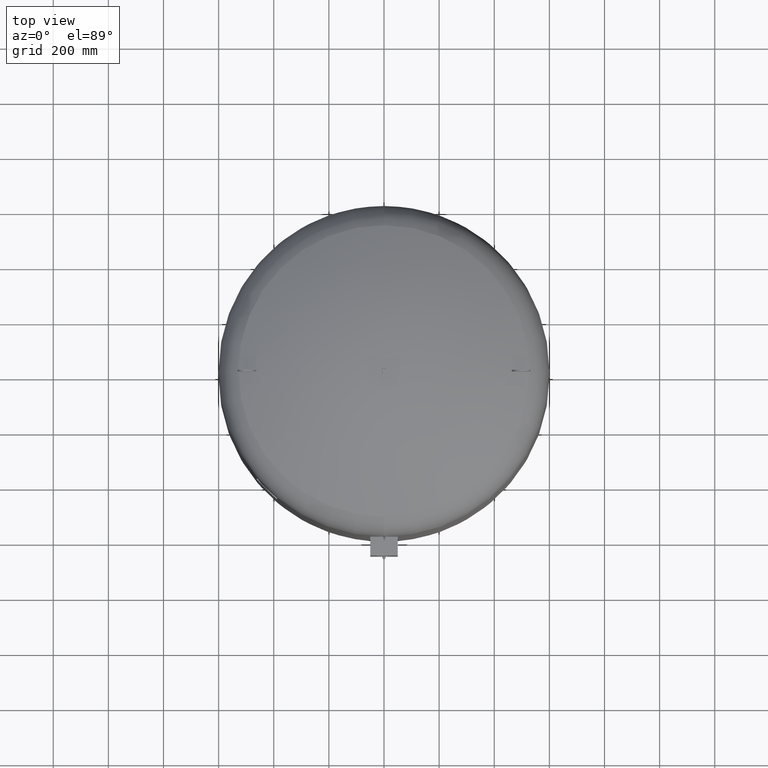
[diagram: clean part render]
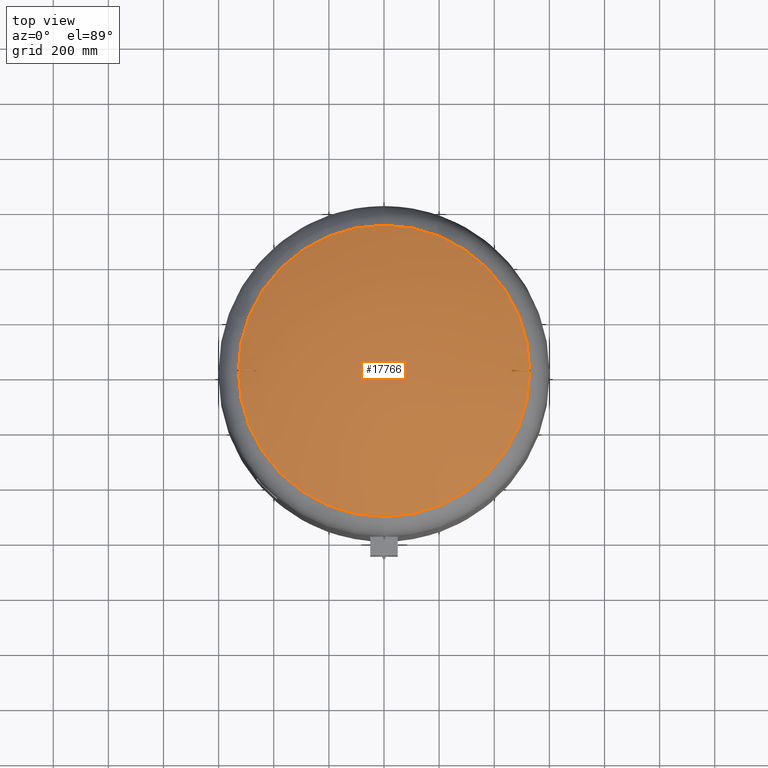
[diagram: same view with one face highlighted and labeled with its STEP entity id]
A machine part, top view. The second image highlights one B-rep face of the part: STEP entity #17766.
In plain terms, the highlighted spherical surface has radius 1207 mm.
Its self-contained STEP definition (entity closure, byte-faithful):
#17198=CARTESIAN_POINT('',(3.894773E-014,-528.621296296296240,1847.084570483805000));
#17199=VERTEX_POINT('',#17198);
#17215=CARTESIAN_POINT('',(1.036830E-013,528.621296296296240,1847.084570483805000));
#17216=VERTEX_POINT('',#17215);
#17224=CARTESIAN_POINT('',(528.621296296296240,-2.239550E-014,1847.084570483805000));
#17225=VERTEX_POINT('',#17224);
#17226=CARTESIAN_POINT('',(3.410787E-015,-2.239550E-014,1847.084570483805000));
#17227=DIRECTION('',(0.0,0.0,-1.0));
#17228=DIRECTION('',(1.0,0.0,0.0));
#17229=AXIS2_PLACEMENT_3D('',#17226,#17227,#17228);
#17230=CIRCLE('',#17229,528.621296296296240);
#17231=EDGE_CURVE('',#17216,#17225,#17230,.T.);
#17233=CARTESIAN_POINT('',(3.410787E-015,-2.239550E-014,1847.084570483805000));
#17234=DIRECTION('',(0.0,0.0,-1.0));
#17235=DIRECTION('',(1.0,0.0,0.0));
#17236=AXIS2_PLACEMENT_3D('',#17233,#17234,#17235);
#17237=CIRCLE('',#17236,528.621296296296240);
#17238=EDGE_CURVE('',#17225,#17199,#17237,.T.);
#17353=CARTESIAN_POINT('',(-463.451600218966230,-3.000000000000292,1876.474142479079300));
#17354=VERTEX_POINT('',#17353);
#17355=CARTESIAN_POINT('',(-521.618748390259610,-2.999999999999862,1850.464000933324300));
#17356=VERTEX_POINT('',#17355);
#17357=CARTESIAN_POINT('',(1.015543E-013,-3.000000000004973,762.0));
#17358=DIRECTION('',(0.0,-1.0,0.0));
#17359=DIRECTION('',(0.0,0.0,1.0));
#17360=AXIS2_PLACEMENT_3D('',#17357,#17358,#17359);
#17361=CIRCLE('',#17360,1206.996271742378000);
#17362=EDGE_CURVE('',#17354,#17356,#17361,.T.);
#17405=CARTESIAN_POINT('',(-463.451600218966290,2.999999999999727,1876.474142479079500));
#17406=VERTEX_POINT('',#17405);
#17407=CARTESIAN_POINT('',(-143.673995061822890,7.801844E-013,722.196972395375950));
#17408=DIRECTION('',(0.963701753162816,-6.720348E-015,0.266981143436978));
#17409=DIRECTION('',(-0.266981143436977,0.0,0.963701753162815));
#17410=AXIS2_PLACEMENT_3D('',#17407,#17408,#17409);
#17411=CIRCLE('',#17410,1197.757280143385700);
#17412=EDGE_CURVE('',#17406,#17354,#17411,.T.);
#17455=CARTESIAN_POINT('',(-521.618748390259730,3.000000000000095,1850.464000933324100));
#17456=VERTEX_POINT('',#17455);
#17457=CARTESIAN_POINT('',(-204.387205511080400,1.203566E-012,705.377160358846370));
#17458=DIRECTION('',(-0.963701753162815,6.720348E-015,-0.266981143436977));
#17459=DIRECTION('',(0.266981143436977,0.0,-0.963701753162815));
#17460=AXIS2_PLACEMENT_3D('',#17457,#17458,#17459);
#17461=CIRCLE('',#17460,1188.220823018324600);
#17462=EDGE_CURVE('',#17356,#17456,#17461,.T.);
#17487=CARTESIAN_POINT('',(1.458865E-013,2.999999999995042,762.0));
#17488=DIRECTION('',(0.0,1.0,0.0));
#17489=DIRECTION('',(0.0,0.0,-1.0));
#17490=AXIS2_PLACEMENT_3D('',#17487,#17488,#17489);
#17491=CIRCLE('',#17490,1206.996271742378000);
#17492=EDGE_CURVE('',#17456,#17406,#17491,.T.);
#17527=CARTESIAN_POINT('',(463.451600218966350,2.999999999999727,1876.474142479079800));
#17528=VERTEX_POINT('',#17527);
#17529=CARTESIAN_POINT('',(521.618748390259730,3.000000000000095,1850.464000933324300));
#17530=VERTEX_POINT('',#17529);
#17531=CARTESIAN_POINT('',(1.015543E-013,2.999999999995042,762.0));
#17532=DIRECTION('',(0.0,1.0,0.0));
#17533=DIRECTION('',(0.0,0.0,-1.0));
#17534=AXIS2_PLACEMENT_3D('',#17531,#17532,#17533);
#17535=CIRCLE('',#17534,1206.996271742378000);
#17536=EDGE_CURVE('',#17528,#17530,#17535,.T.);
#17579=CARTESIAN_POINT('',(463.451600218966230,-3.000000000000292,1876.474142479079300));
#17580=VERTEX_POINT('',#17579);
#17581=CARTESIAN_POINT('',(143.673995061822890,7.801844E-013,722.196972395375950));
#17582=DIRECTION('',(-0.963701753162816,-6.720348E-015,0.266981143436978));
#17583=DIRECTION('',(-0.266981143436977,0.0,-0.963701753162815));
#17584=AXIS2_PLACEMENT_3D('',#17581,#17582,#17583);
#17585=CIRCLE('',#17584,1197.757280143385700);
#17586=EDGE_CURVE('',#17580,#17528,#17585,.T.);
#17650=CARTESIAN_POINT('',(521.618748390259610,-2.999999999999862,1850.464000933324300));
#17651=VERTEX_POINT('',#17650);
#17652=CARTESIAN_POINT('',(204.387205511080450,1.203566E-012,705.377160358846370));
#17653=DIRECTION('',(0.963701753162815,6.720348E-015,-0.266981143436977));
#17654=DIRECTION('',(0.266981143436977,0.0,0.963701753162815));
#17655=AXIS2_PLACEMENT_3D('',#17652,#17653,#17654);
#17656=CIRCLE('',#17655,1188.220823018324600);
#17657=EDGE_CURVE('',#17530,#17651,#17656,.T.);
#17721=CARTESIAN_POINT('',(1.458865E-013,-3.000000000004973,762.0));
#17722=DIRECTION('',(0.0,-1.0,0.0));
#17723=DIRECTION('',(0.0,0.0,1.0));
#17724=AXIS2_PLACEMENT_3D('',#17721,#17722,#17723);
#17725=CIRCLE('',#17724,1206.996271742378000);
#17726=EDGE_CURVE('',#17651,#17580,#17725,.T.);
#17738=CARTESIAN_POINT('',(1.237204E-013,-2.217223E-013,762.0));
#17739=DIRECTION('',(0.0,-1.0,0.0));
#17740=DIRECTION('',(-1.0,0.0,0.0));
#17741=AXIS2_PLACEMENT_3D('',#17738,#17739,#17740);
#17742=SPHERICAL_SURFACE('',#17741,1207.000000000000200);
#17743=ORIENTED_EDGE('',*,*,#17412,.T.);
#17744=ORIENTED_EDGE('',*,*,#17362,.T.);
#17745=ORIENTED_EDGE('',*,*,#17462,.T.);
#17746=ORIENTED_EDGE('',*,*,#17492,.T.);
#17747=EDGE_LOOP('',(#17743,#17744,#17745,#17746));
#17748=FACE_OUTER_BOUND('',#17747,.T.);
#17749=ORIENTED_EDGE('',*,*,#17586,.T.);
#17750=ORIENTED_EDGE('',*,*,#17536,.T.);
#17751=ORIENTED_EDGE('',*,*,#17657,.T.);
#17752=ORIENTED_EDGE('',*,*,#17726,.T.);
#17753=EDGE_LOOP('',(#17749,#17750,#17751,#17752));
#17754=FACE_BOUND('',#17753,.T.);
#17755=ORIENTED_EDGE('',*,*,#17238,.F.);
#17756=ORIENTED_EDGE('',*,*,#17231,.F.);
#17757=CARTESIAN_POINT('',(3.410787E-015,-2.239550E-014,1847.084570483805000));
#17758=DIRECTION('',(0.0,0.0,-1.0));
#17759=DIRECTION('',(1.0,0.0,0.0));
#17760=AXIS2_PLACEMENT_3D('',#17757,#17758,#17759);
#17761=CIRCLE('',#17760,528.621296296296240);
#17762=EDGE_CURVE('',#17199,#17216,#17761,.T.);
#17763=ORIENTED_EDGE('',*,*,#17762,.F.);
#17764=EDGE_LOOP('',(#17755,#17756,#17763));
#17765=FACE_BOUND('',#17764,.T.);
#17766=ADVANCED_FACE('',(#17748,#17754,#17765),#17742,.T.);